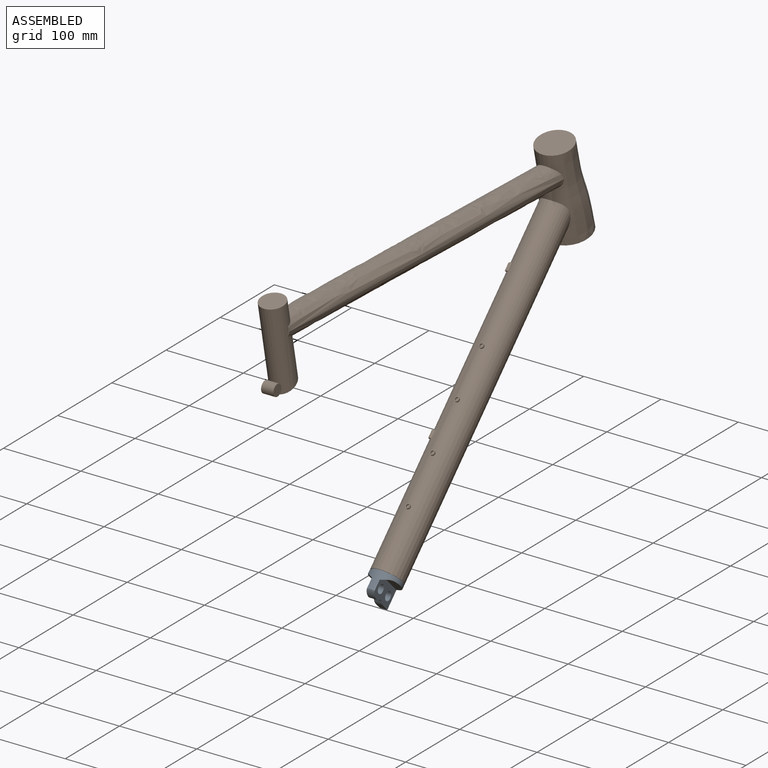
[diagram: assembled view]
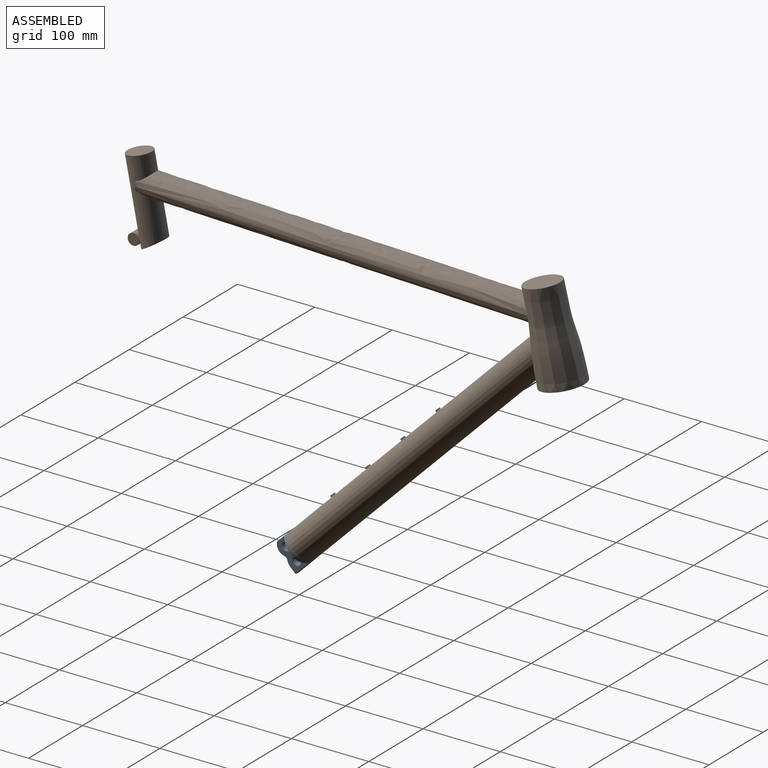
[diagram: assembled view, second angle]
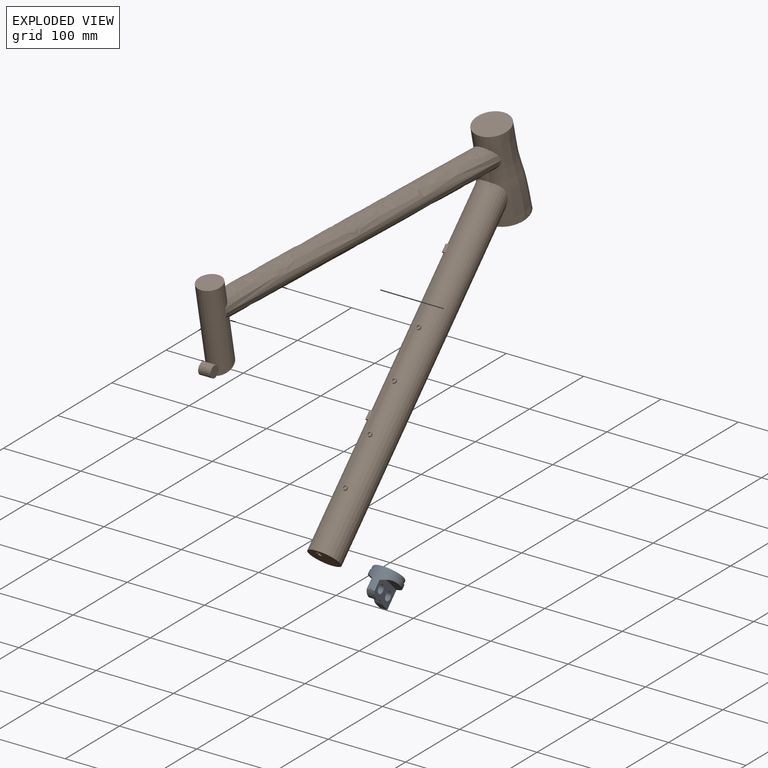
[diagram: exploded view]
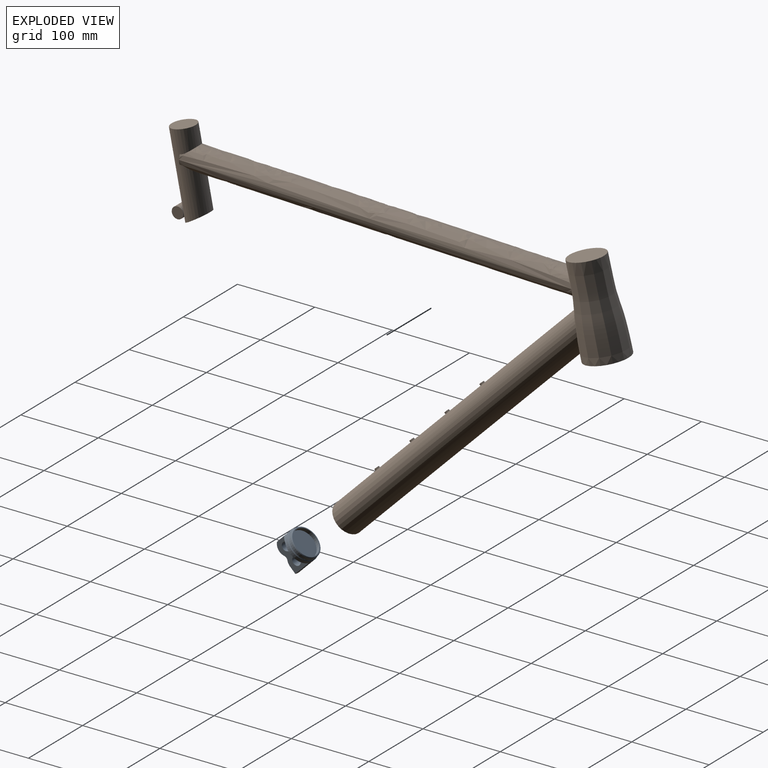
[diagram: exploded view, second angle]
ASSEMBLY  parts=2 mates=3
PART A: 20 faces, bbox 34.5x40x40 mm
  f0: plane 38.73x24mm, normal (0,-1,0), area 682.1mm2, adj f3,f4,f5,f6,f7,f16,f17,f18
  f1: plane 38.73x24mm, normal (0,1,0), area 682.1mm2, adj f2,f3,f4,f5,f6,f7,f8,f18
  f2: plane 28.87x15mm, normal (-1,0,0), area 350.3mm2, adj f1,f7,f8
  f3: cylinder r=5.55mm len=11.1mm, axis (0,1,0), area 348.7mm2, adj f0,f1
  f4: cylinder r=5.55mm len=11.1mm, axis (0,1,0), area 348.7mm2, adj f0,f1
  f5: plane 10.5x10mm, normal (-1,0,0), area 102.9mm2, adj f0,f1,f7,f18
  f6: cylinder r=12mm len=17.21mm, axis (0,1,0), area 194.9mm2, adj f0,f1,f7,f19
  f7: cylinder r=20mm len=40mm, axis (-1,0,0), area 1071.5mm2, adj f0,f1,f2,f5,f6,f8,f14,f16
  f8: cylinder r=12mm len=12.6mm, axis (0,-1,0), area 87.8mm2, adj f1,f2,f7
  f9: plane 38.2x38.2mm, normal (1,0,0), area 6mm2, adj f11,f14
  f10: cylinder r=17.1mm len=34.2mm, axis (-1,0,0), area 537.2mm2, adj f12,f13
  f11: cylinder r=19.05mm len=38.1mm, axis (-1,0,0), area 502.7mm2, adj f9,f15
  f12: plane 36.5x36.5mm, normal (1,0,0), area 127.7mm2, adj f10,f15
  f13: plane 34.2x34.2mm, normal (1,0,0), area 918.6mm2, adj f10
  f14: cone r=20mm half-angle=45deg, axis (-1,0,0), area 156.3mm2, adj f7,f9
  f15: cone r=18.25mm half-angle=45deg, axis (-1,0,0), area 132.6mm2, adj f11,f12
  f16: cylinder r=12mm len=12.6mm, axis (0,1,0), area 87.8mm2, adj f0,f7,f17
  f17: plane 28.87x15mm, normal (-1,0,0), area 350.3mm2, adj f0,f7,f16
  f18: cylinder r=12mm len=10mm, axis (0,1,0), area 71.2mm2, adj f0,f1,f5,f19
  f19: cylinder r=5mm len=10mm, axis (0,-1,0), area 59.3mm2, adj f0,f1,f6,f18
PART B: 43 faces, bbox 56x596.3x426 mm
  f0: cylinder r=2mm len=4.38mm, axis (0,0.75,-0.67), area 25.8mm2, adj f2,f42
  f1: cylinder r=3mm len=6mm, axis (0,0.75,-0.67), area 39.8mm2, adj f2,f41
  f2: plane 6x4.47mm, normal (0,-0.75,0.67), area 15.7mm2, adj f0,f1
  f3: cylinder r=20mm len=4mm, axis (0,-0.67,-0.75), area 12.6mm2, adj f40
  f4: cylinder r=2mm len=4.38mm, axis (0,0.75,-0.67), area 25.8mm2, adj f6,f37
  f5: cylinder r=3mm len=6mm, axis (0,0.75,-0.67), area 39.8mm2, adj f6,f41
  f6: plane 6x4.47mm, normal (0,-0.75,0.67), area 15.7mm2, adj f4,f5
  f7: cylinder r=20mm len=4mm, axis (0,-0.67,-0.75), area 12.6mm2, adj f36
  f8: cylinder r=15.9mm len=114.26mm, axis (0,0.25,-0.97), area 9187.4mm2, adj f9,f10,f11,f12,f17,f21
  f9: plane 31.8x30.79mm, normal (0,-0.25,0.97), area 794.2mm2, adj f8
  f10: plane 31.8x27.89mm, normal (0,0.57,-0.82), area 845.2mm2, adj f8
  f11: extruded ~508.86x42.3mm, area 49746mm2, adj f8,f12,f14,f17
  f12: plane 12.41x1.76mm, normal (0,-1,-0.03), area 13.5mm2, adj f8,f11
  f13: plane 40x29.82mm, normal (0,-0.67,-0.75), area 1209mm2, adj f18,f19,f20,f41
  f14: revolved ~124.82x81.98mm, area 13608mm2, adj f11,f15,f16,f41
  f15: plane 56x53.62mm, normal (0,0.29,-0.96), area 2463mm2, adj f14
  f16: plane 46x44.05mm, normal (0,-0.29,0.96), area 1661.9mm2, adj f14
  f17: plane 12.41x1.76mm, normal (0,-1,-0.03), area 13.5mm2, adj f8,f11
  f18: cylinder r=4.77mm len=8.32mm, axis (1,0,0), area 74.9mm2, adj f13,f19,f20
  f19: plane 8.32x7.94mm, normal (1,0,0), area 35.7mm2, adj f13,f18
  f20: plane 8.32x7.94mm, normal (-1,0,0), area 35.7mm2, adj f13,f18
  f21: cylinder r=7.5mm len=16mm, axis (-1,0,0), area 665.4mm2, adj f8,f22,f23
  f22: plane 15x15mm, normal (1,0,0), area 176.7mm2, adj f21
  f23: plane 15x15mm, normal (-1,0,0), area 176.7mm2, adj f21
  f24: cylinder r=2.5mm len=9.4mm, axis (0,-0.67,-0.75), area 45.7mm2, adj f25,f26,f27,f28
  f25: plane 8.88x8.26mm, normal (-0.9,0.33,-0.29), area 23.8mm2, adj f24,f27,f28,f41
  f26: plane 8.09x7.37mm, normal (0.35,-0.7,0.63), area 27.3mm2, adj f24,f27,f28,f41
  f27: plane 5.25x3.76mm, normal (0,0.67,0.75), area 8.1mm2, adj f24,f25,f26,f41
  f28: plane 5.25x3.76mm, normal (0,-0.67,-0.75), area 8.1mm2, adj f24,f25,f26,f41
  f29: cylinder r=2.5mm len=9.4mm, axis (0,-0.67,-0.75), area 45.7mm2, adj f30,f31,f32,f33
  f30: plane 8.88x8.26mm, normal (-0.9,0.33,-0.29), area 23.8mm2, adj f29,f32,f33,f41
  f31: plane 8.09x7.37mm, normal (0.35,-0.7,0.63), area 27.3mm2, adj f29,f32,f33,f41
  f32: plane 5.25x3.76mm, normal (0,0.67,0.75), area 8.1mm2, adj f29,f30,f31,f41
  f33: plane 5.25x3.76mm, normal (0,-0.67,-0.75), area 8.1mm2, adj f29,f30,f31,f41
  f34: plane 6x4.47mm, normal (0,-0.75,0.67), area 15.7mm2, adj f35,f36
  f35: cylinder r=3mm len=6mm, axis (0,0.75,-0.67), area 39.8mm2, adj f34,f41
  f36: cylinder r=2mm len=4.38mm, axis (0,0.75,-0.67), area 25.8mm2, adj f7,f34
  f37: cylinder r=20mm len=4mm, axis (0,-0.67,-0.75), area 12.6mm2, adj f4
  f38: plane 6x4.47mm, normal (0,-0.75,0.67), area 15.7mm2, adj f39,f40
  f39: cylinder r=3mm len=6mm, axis (0,0.75,-0.67), area 39.8mm2, adj f38,f41
  f40: cylinder r=2mm len=4.38mm, axis (0,0.75,-0.67), area 25.8mm2, adj f3,f38
  f41: cylinder r=20mm len=356.75mm, axis (0,-0.67,-0.75), area 54144.7mm2, adj f1,f5,f13,f14,f25,f26,f27,f28
  f42: cylinder r=20mm len=4mm, axis (0,-0.67,-0.75), area 12.6mm2, adj f0
PLACE A rot(axis=(0.36,-0.36,0.86),98.4deg) t=(74.73,-122.61,-107.81)mm
PLACE B rot(axis=(-1,0,0),3.2deg) t=(74.73,-221.6,-178.52)mm
MATE parallel A.f0 <-> B.f19  axis (1,0,0) through (79.73,-112.4,-76.29)mm
MATE planar A.f7 <-> B.f13  axis (0,0.71,0.71) through (74.73,-112,-68.92)mm
MATE cylindrical A.f7 <-> B.f3  axis (0,-0.71,-0.71) through (74.73,-110.52,-67.43)mm
